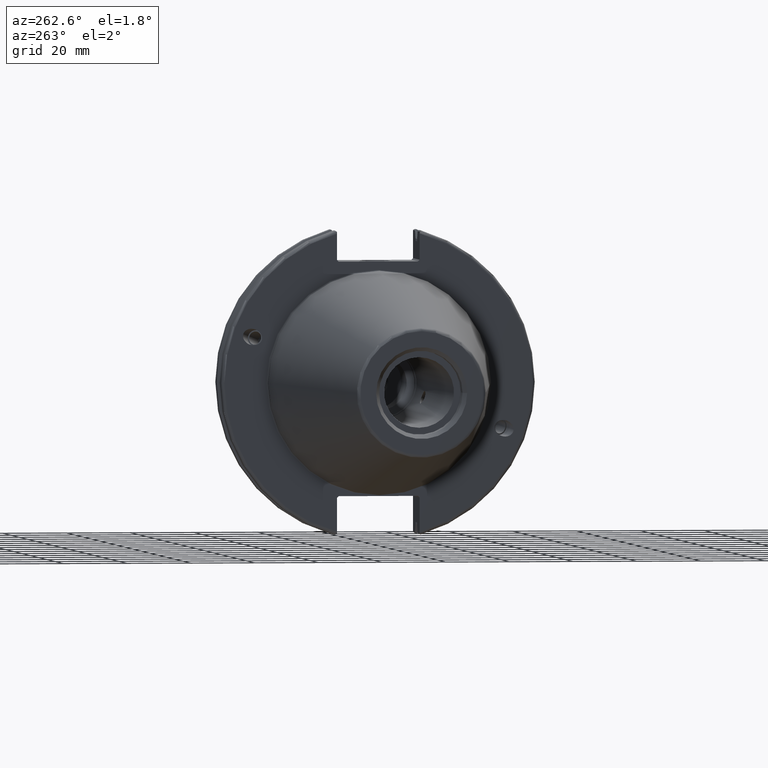
[diagram: clean part render]
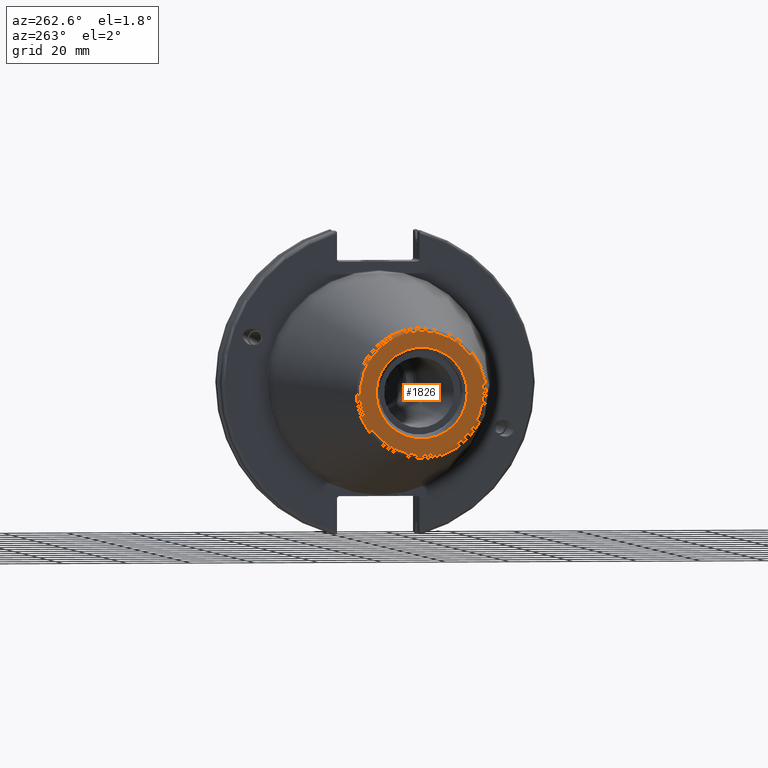
[diagram: same view with one face highlighted and labeled with its STEP entity id]
A machine part, auxiliary view. The second image highlights one B-rep face of the part: STEP entity #1826.
In plain terms, the highlighted planar face has unit normal (-1, 0, 0).
Its self-contained STEP definition (entity closure, byte-faithful):
#125=FACE_BOUND('',#361,.T.);
#146=PLANE('',#2079);
#237=FACE_OUTER_BOUND('',#360,.T.);
#360=EDGE_LOOP('',(#1577));
#361=EDGE_LOOP('',(#1578));
#694=CIRCLE('',#2078,19.2435889303637);
#695=CIRCLE('',#2080,14.2875);
#875=VERTEX_POINT('',#3392);
#876=VERTEX_POINT('',#3396);
#1124=EDGE_CURVE('',#875,#875,#694,.T.);
#1125=EDGE_CURVE('',#876,#876,#695,.T.);
#1577=ORIENTED_EDGE('',*,*,#1124,.F.);
#1578=ORIENTED_EDGE('',*,*,#1125,.T.);
#1826=ADVANCED_FACE('',(#237,#125),#146,.T.);
#2078=AXIS2_PLACEMENT_3D('',#3394,#2602,#2603);
#2079=AXIS2_PLACEMENT_3D('',#3395,#2604,#2605);
#2080=AXIS2_PLACEMENT_3D('',#3397,#2606,#2607);
#2602=DIRECTION('center_axis',(1.,0.,0.));
#2603=DIRECTION('ref_axis',(0.,-1.,1.83697019872103E-16));
#2604=DIRECTION('center_axis',(-1.,0.,0.));
#2605=DIRECTION('ref_axis',(0.,0.,1.));
#2606=DIRECTION('center_axis',(1.,0.,0.));
#2607=DIRECTION('ref_axis',(0.,0.,-1.));
#3392=CARTESIAN_POINT('',(-101.6,-2.35665995876774E-15,19.2435889303637));
#3394=CARTESIAN_POINT('Origin',(-101.6,0.,0.));
#3395=CARTESIAN_POINT('Origin',(-101.6,20.1083333333333,0.));
#3396=CARTESIAN_POINT('',(-101.6,-14.2875,-1.74971411428178E-15));
#3397=CARTESIAN_POINT('Origin',(-101.6,0.,0.));